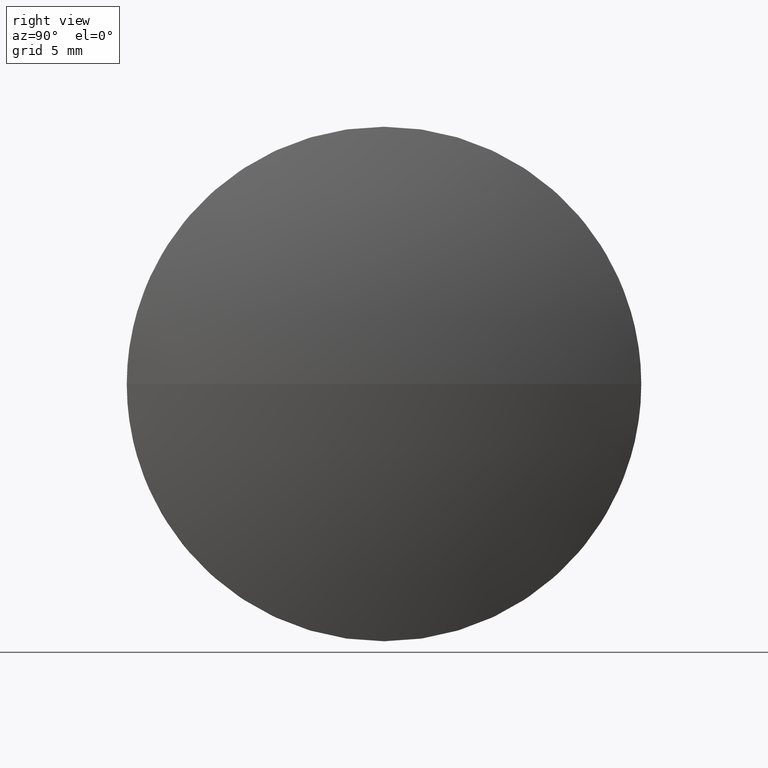
[diagram: clean part render]
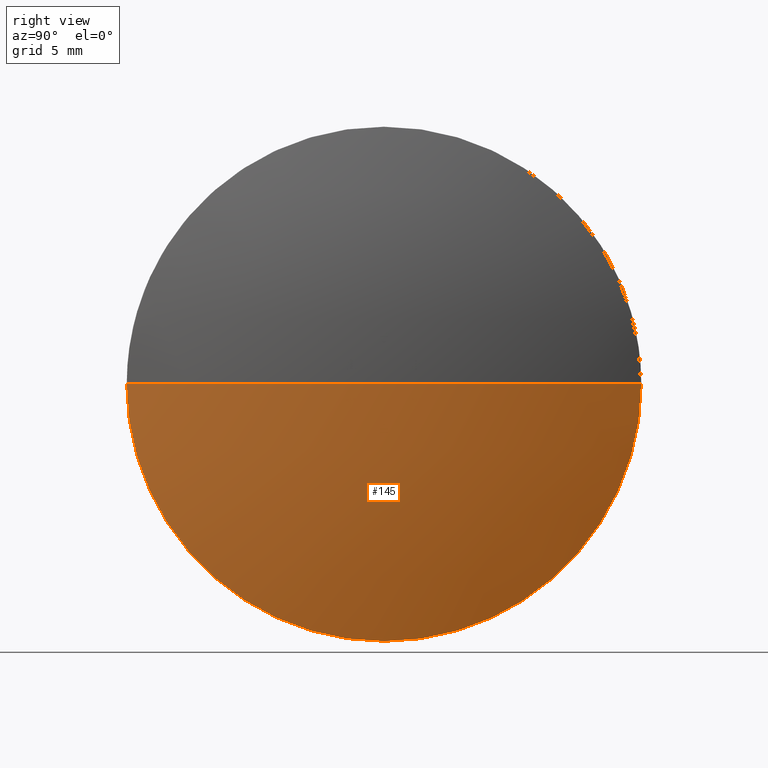
[diagram: same view with one face highlighted and labeled with its STEP entity id]
A machine part, right view. The second image highlights one B-rep face of the part: STEP entity #145.
In plain terms, the highlighted spherical surface has radius 39.3166 mm.
Its self-contained STEP definition (entity closure, byte-faithful):
#6 = ORIENTED_EDGE ( 'NONE', *, *, #85, .T. ) ;
#15 = CARTESIAN_POINT ( 'NONE',  ( 446.9298235950028600, 32.31075153967160700, 0.0000000000000000000 ) ) ;
#16 = CARTESIAN_POINT ( 'NONE',  ( 446.9298235950028600, 32.31075153967160700, 0.0000000000000000000 ) ) ;
#17 = VERTEX_POINT ( 'NONE', #152 ) ;
#18 = AXIS2_PLACEMENT_3D ( 'NONE', #15, #164, #67 ) ;
#51 = VERTEX_POINT ( 'NONE', #133 ) ;
#55 = EDGE_CURVE ( 'NONE', #117, #124, #120, .T. ) ;
#59 = CARTESIAN_POINT ( 'NONE',  ( 484.2063922224538700, 32.31075153967162800, 0.0000000000000000000 ) ) ;
#63 = CIRCLE ( 'NONE', #150, 39.31656862745097700 ) ;
#64 = AXIS2_PLACEMENT_3D ( 'NONE', #123, #100, #89 ) ;
#67 = DIRECTION ( 'NONE',  ( 0.0000000000000000000, 1.000000000000000000, 1.224646799147353500E-016 ) ) ;
#73 = ORIENTED_EDGE ( 'NONE', *, *, #55, .F. ) ;
#74 = DIRECTION ( 'NONE',  ( 0.0000000000000000000, 0.0000000000000000000, 1.000000000000000000 ) ) ;
#82 = DIRECTION ( 'NONE',  ( 1.000000000000000000, 0.0000000000000000000, 0.0000000000000000000 ) ) ;
#85 = EDGE_CURVE ( 'NONE', #17, #51, #151, .T. ) ;
#89 = DIRECTION ( 'NONE',  ( 0.0000000000000000000, 0.0000000000000000000, 1.000000000000000000 ) ) ;
#91 = DIRECTION ( 'NONE',  ( -0.0000000000000000000, 0.0000000000000000000, -1.000000000000000000 ) ) ;
#93 = ORIENTED_EDGE ( 'NONE', *, *, #139, .F. ) ;
#94 = AXIS2_PLACEMENT_3D ( 'NONE', #59, #101, #74 ) ;
#100 = DIRECTION ( 'NONE',  ( -1.000000000000000000, -0.0000000000000000000, -0.0000000000000000000 ) ) ;
#101 = DIRECTION ( 'NONE',  ( -1.000000000000000000, -0.0000000000000000000, -0.0000000000000000000 ) ) ;
#104 = AXIS2_PLACEMENT_3D ( 'NONE', #16, #91, #138 ) ;
#113 = CARTESIAN_POINT ( 'NONE',  ( 446.9298235950028600, 32.31075153967160700, 0.0000000000000000000 ) ) ;
#115 = ORIENTED_EDGE ( 'NONE', *, *, #165, .F. ) ;
#117 = VERTEX_POINT ( 'NONE', #135 ) ;
#120 = CIRCLE ( 'NONE', #64, 12.50000000000000400 ) ;
#123 = CARTESIAN_POINT ( 'NONE',  ( 484.2063922224538700, 32.31075153967162800, 0.0000000000000000000 ) ) ;
#124 = VERTEX_POINT ( 'NONE', #153 ) ;
#127 = DIRECTION ( 'NONE',  ( -0.0000000000000000000, 0.0000000000000000000, 1.000000000000000000 ) ) ;
#131 = CIRCLE ( 'NONE', #94, 12.50000000000000400 ) ;
#133 = CARTESIAN_POINT ( 'NONE',  ( 484.2063922224538700, 19.81075153967161000, -1.530808498934190300E-015 ) ) ;
#135 = CARTESIAN_POINT ( 'NONE',  ( 484.2063922224538700, 44.81075153967162100, 0.0000000000000000000 ) ) ;
#138 = DIRECTION ( 'NONE',  ( 0.0000000000000000000, 1.000000000000000000, 0.0000000000000000000 ) ) ;
#139 = EDGE_CURVE ( 'NONE', #124, #51, #131, .T. ) ;
#140 = SPHERICAL_SURFACE ( 'NONE', #104, 39.31656862745099100 ) ;
#145 = ADVANCED_FACE ( 'NONE', ( #173 ), #140, .T. ) ;
#150 = AXIS2_PLACEMENT_3D ( 'NONE', #113, #127, #82 ) ;
#151 = CIRCLE ( 'NONE', #18, 39.31656862745098400 ) ;
#152 = CARTESIAN_POINT ( 'NONE',  ( 486.2463922224538400, 32.31075153967160700, 0.0000000000000000000 ) ) ;
#153 = CARTESIAN_POINT ( 'NONE',  ( 484.2063922224538700, 32.31075153967162800, -12.50000000000000400 ) ) ;
#164 = DIRECTION ( 'NONE',  ( 0.0000000000000000000, 1.224646799147353200E-016, -1.000000000000000000 ) ) ;
#165 = EDGE_CURVE ( 'NONE', #17, #117, #63, .T. ) ;
#173 = FACE_OUTER_BOUND ( 'NONE', #182, .T. ) ;
#182 = EDGE_LOOP ( 'NONE', ( #115, #6, #93, #73 ) ) ;